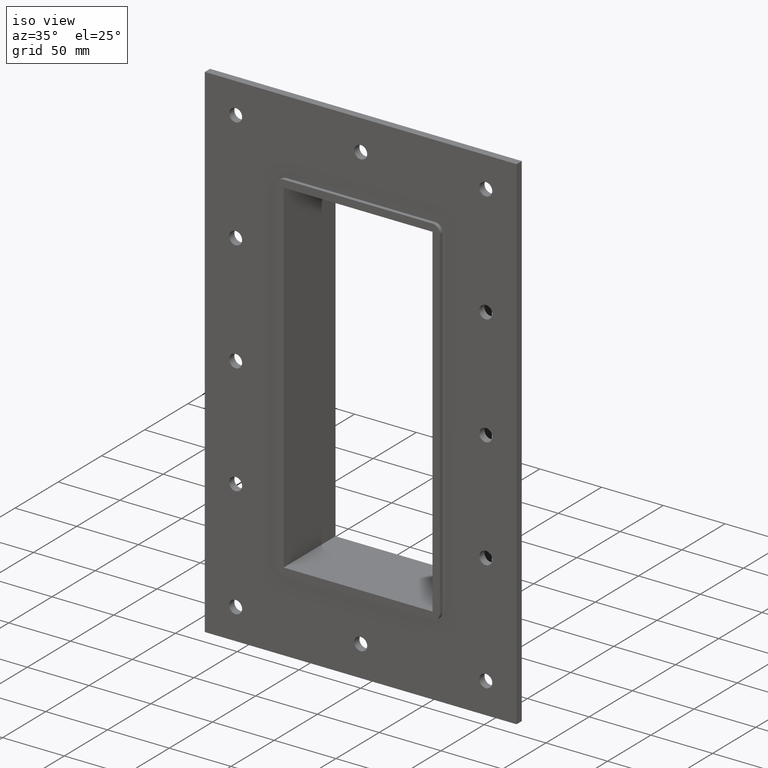
[diagram: clean part render]
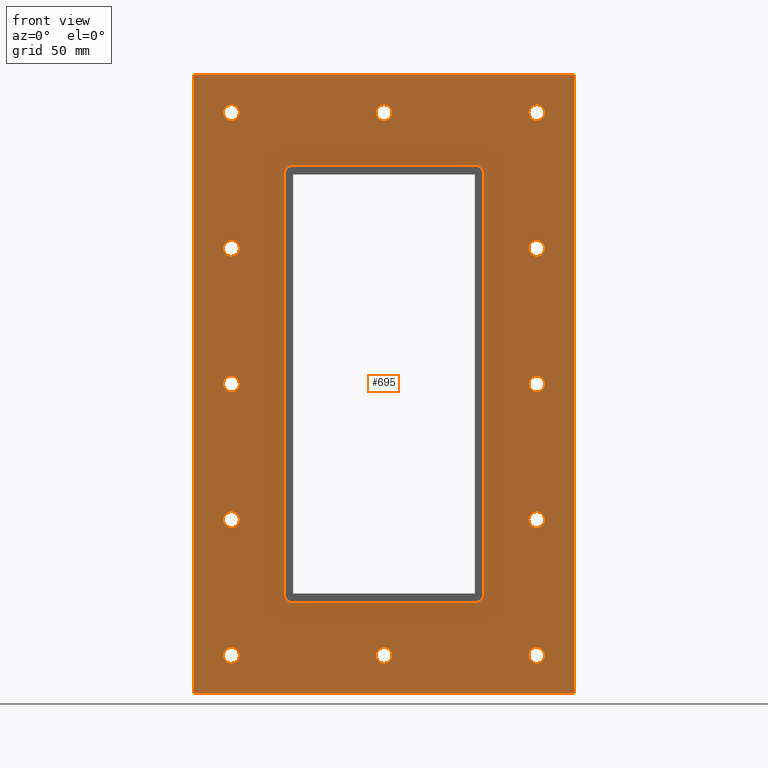
[diagram: tour spotlight — one face highlighted and labeled with its STEP entity id]
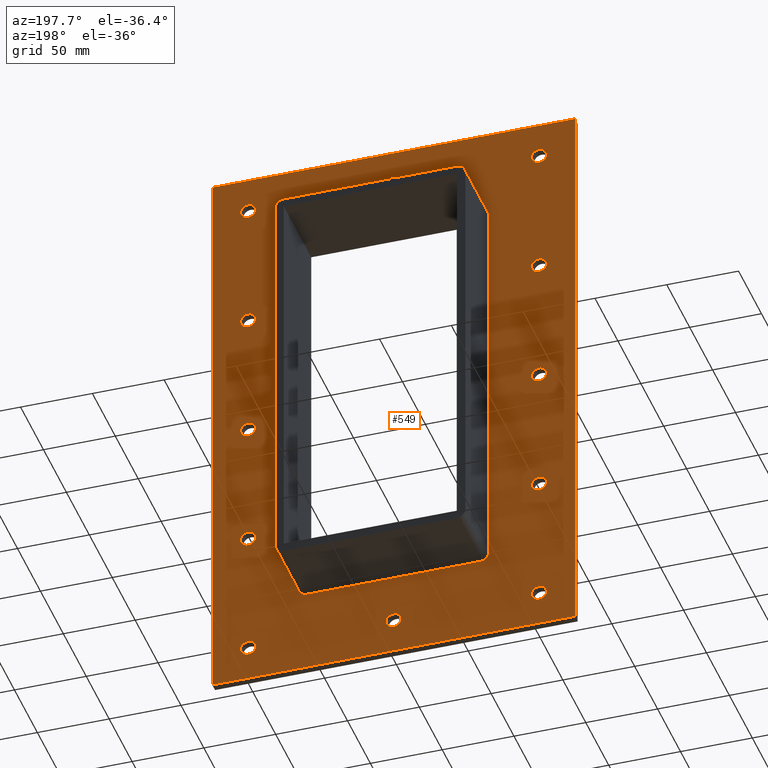
[diagram: tour spotlight — one face highlighted and labeled with its STEP entity id]
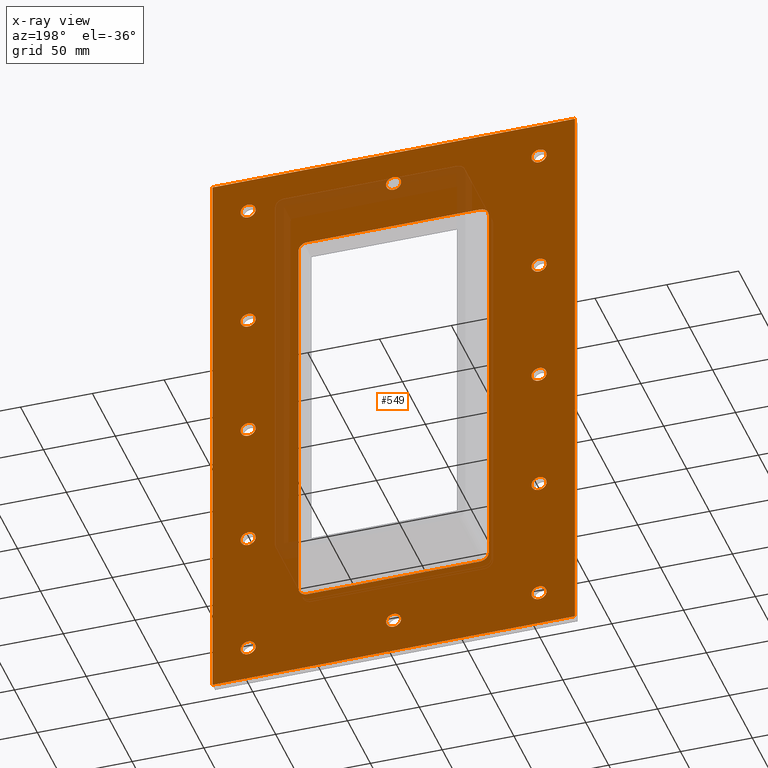
[diagram: x-ray of the same camera — body ghosted, this tour face saturated]
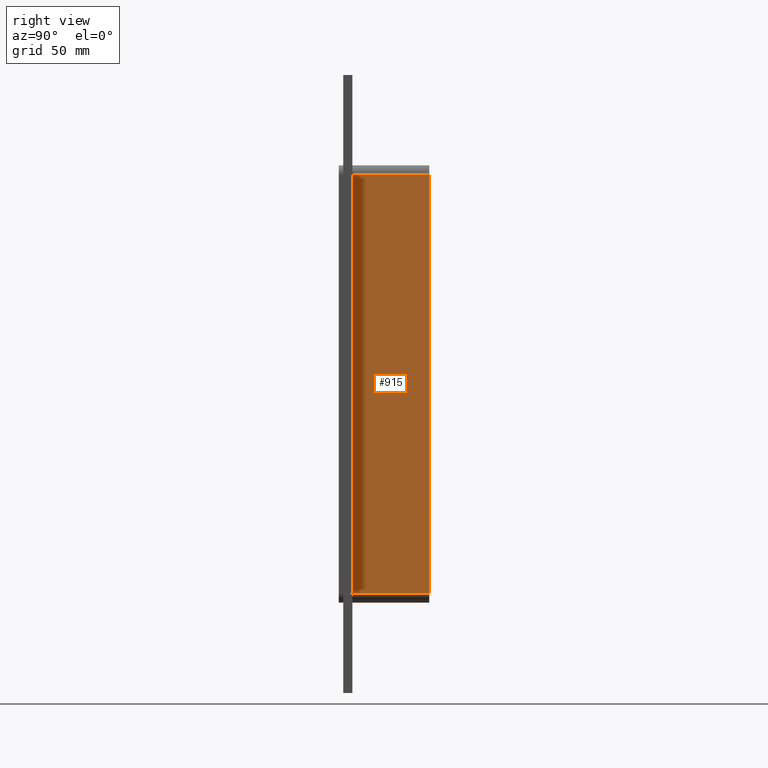
[diagram: tour spotlight — one face highlighted and labeled with its STEP entity id]
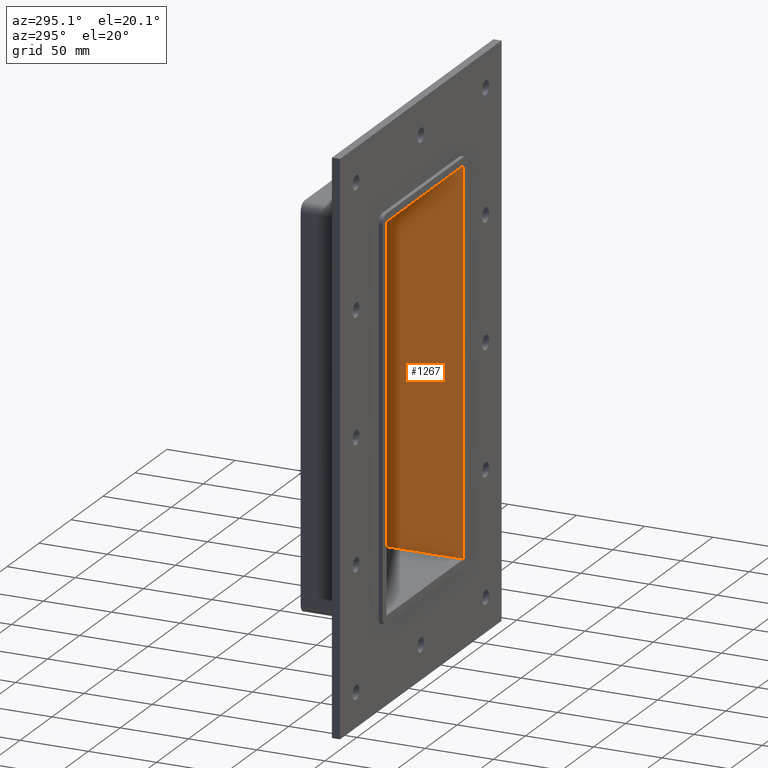
[diagram: tour spotlight — one face highlighted and labeled with its STEP entity id]
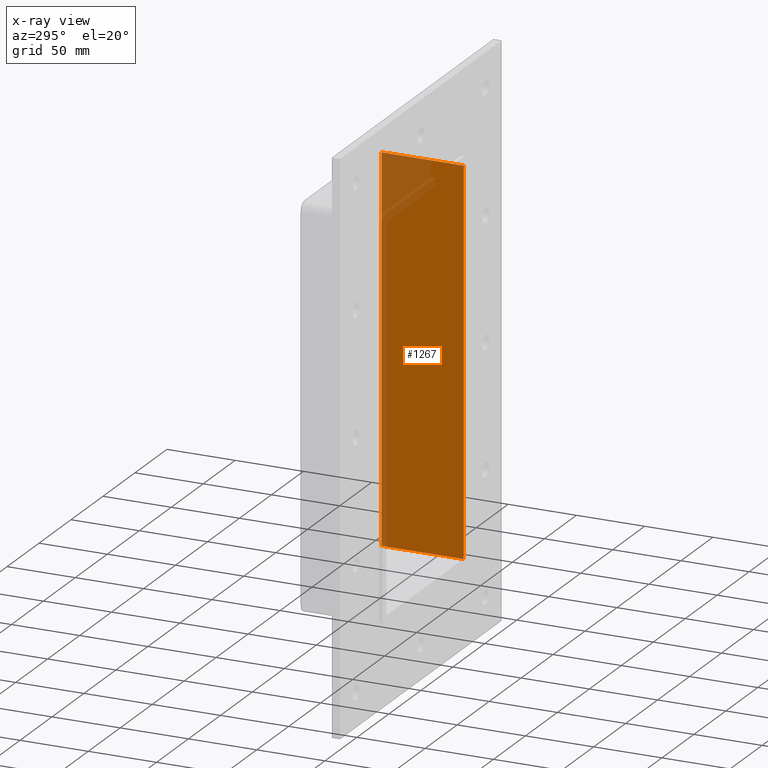
[diagram: x-ray of the same camera — body ghosted, this tour face saturated]
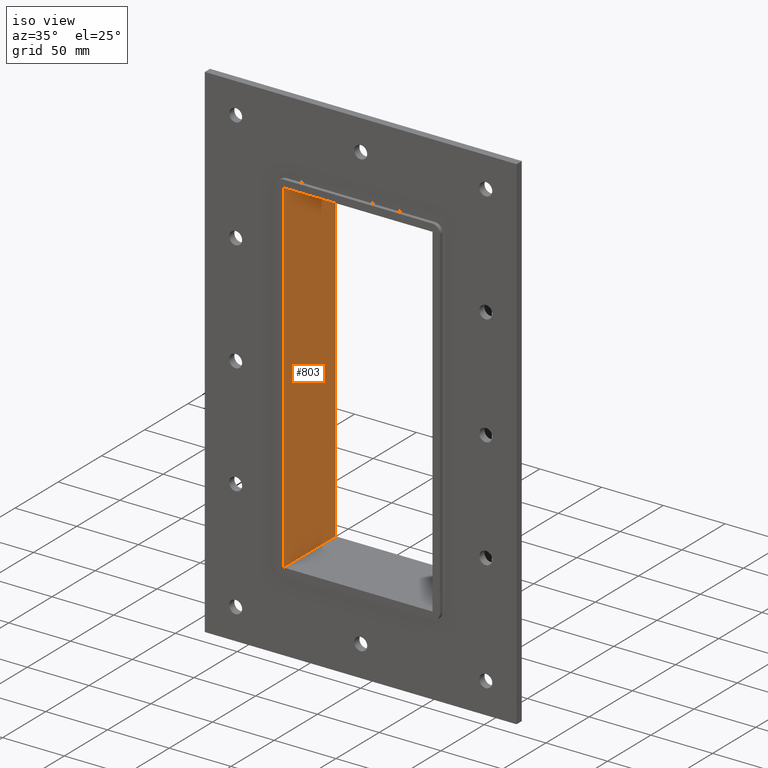
[diagram: tour spotlight — one face highlighted and labeled with its STEP entity id]
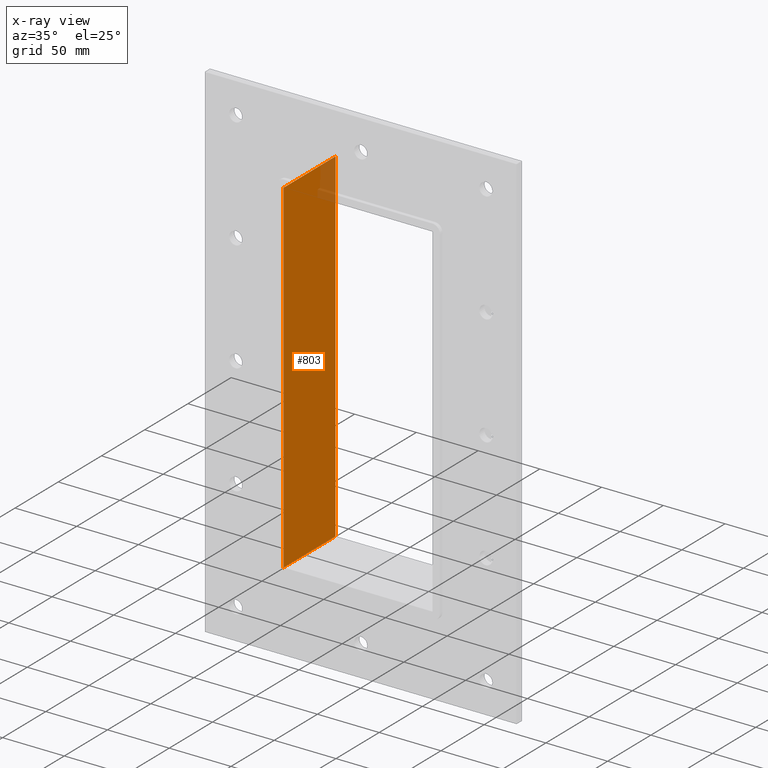
[diagram: x-ray of the same camera — body ghosted, this tour face saturated]
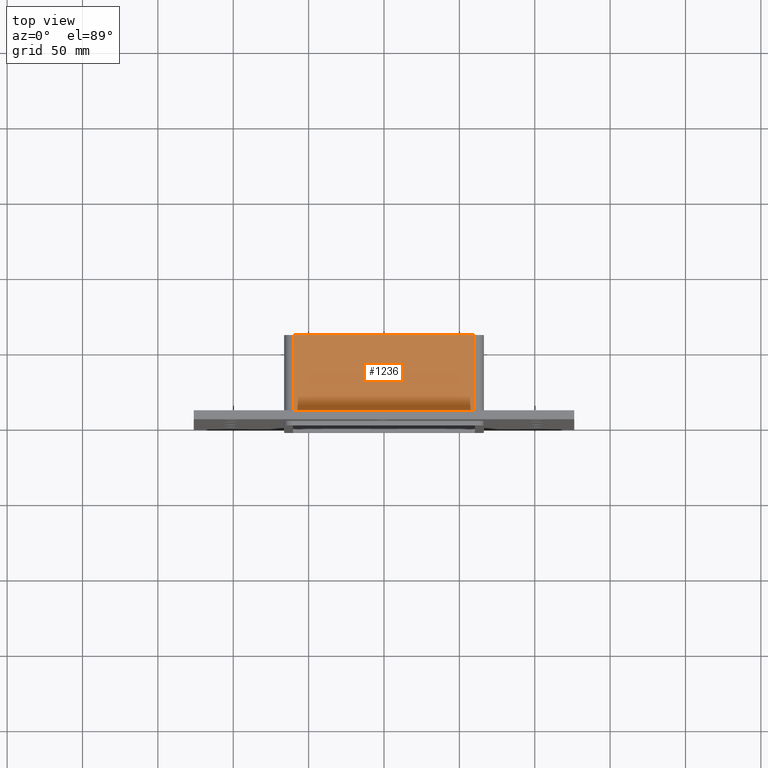
[diagram: tour spotlight — one face highlighted and labeled with its STEP entity id]
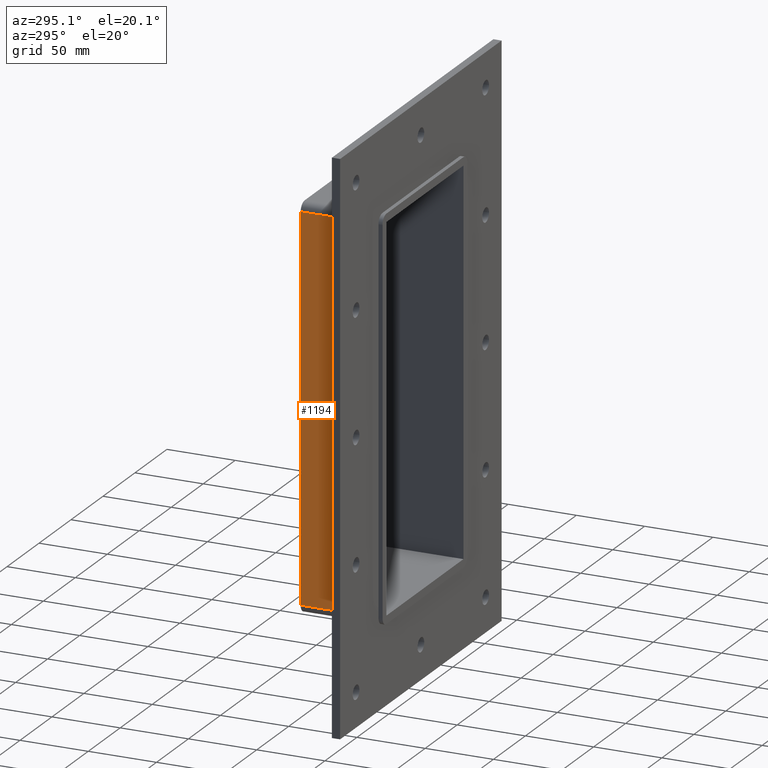
[diagram: tour spotlight — one face highlighted and labeled with its STEP entity id]
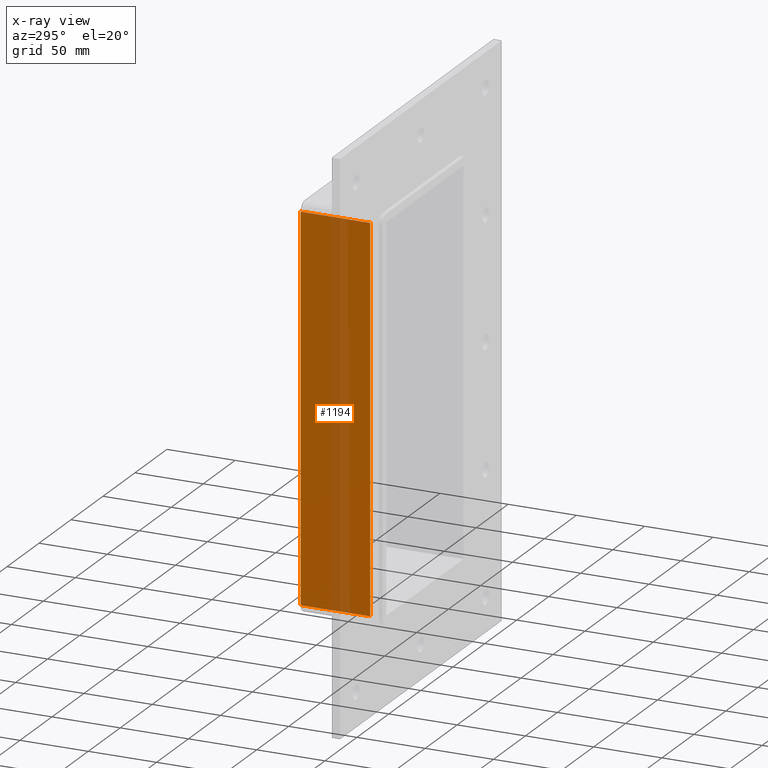
[diagram: x-ray of the same camera — body ghosted, this tour face saturated]
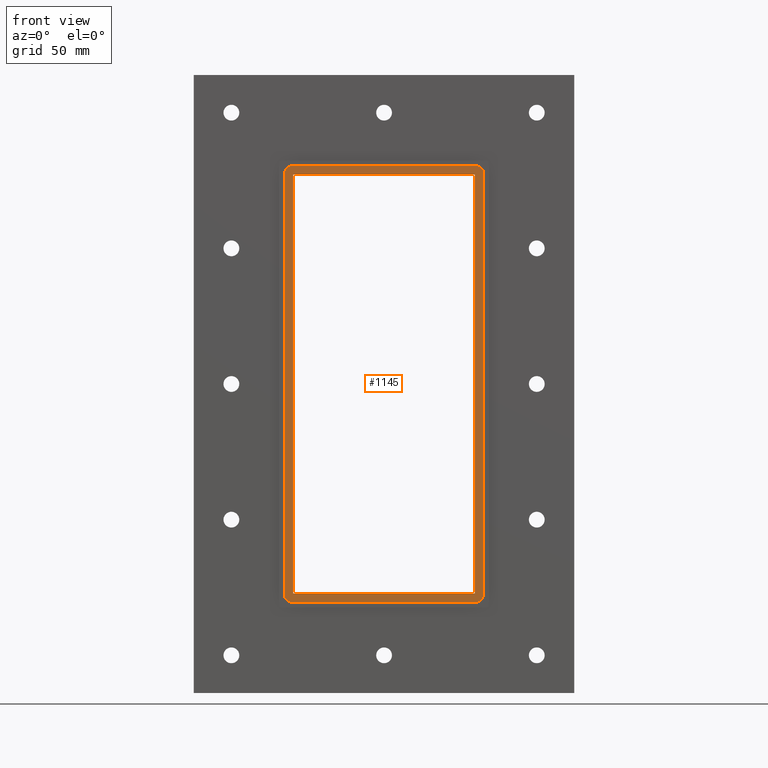
[diagram: tour spotlight — one face highlighted and labeled with its STEP entity id]
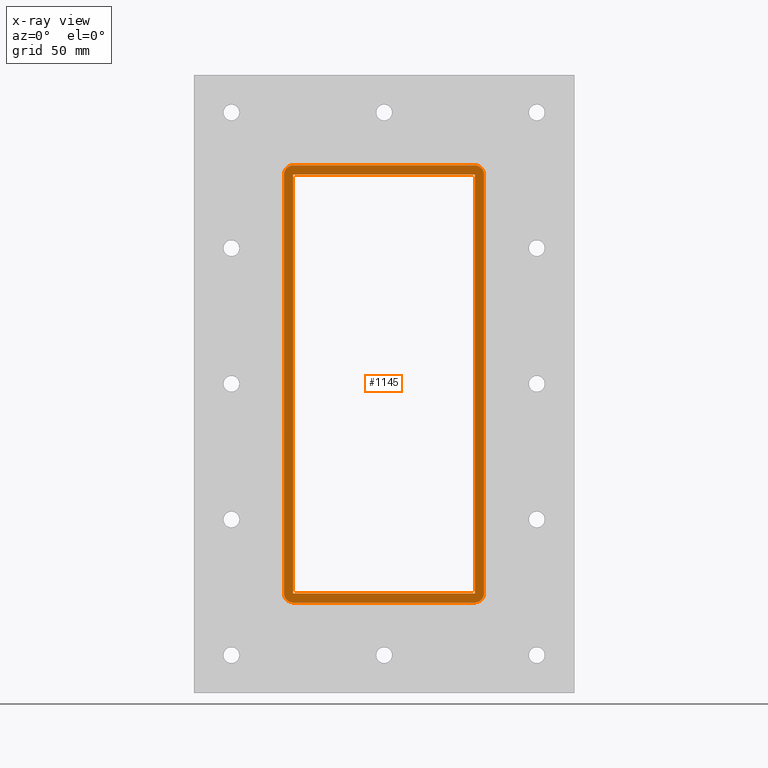
[diagram: x-ray of the same camera — body ghosted, this tour face saturated]
A machine part: a face-by-face anatomy tour. The part has 40 B-rep faces; the first image is the clean iso view, then the 8 largest visible faces are spotlighted one at a time (largest first), each with its STEP entity span.

Face 1 — front view, entity #695. In plain terms, the highlighted planar face has unit normal (0, 1, 0).
Definition (entity closure, byte-faithful):
#84=CARTESIAN_POINT('',(-96.0,0.0,-180.0));
#85=VERTEX_POINT('',#84);
#86=CARTESIAN_POINT('',(-101.25,0.0,-180.0));
#87=DIRECTION('',(0.0,1.0,0.0));
#88=DIRECTION('',(1.0,0.0,0.0));
#89=AXIS2_PLACEMENT_3D('',#86,#87,#88);
#90=CIRCLE('',#89,5.25);
#91=EDGE_CURVE('',#85,#85,#90,.T.);
#112=CARTESIAN_POINT('',(106.60000000000002,0.0,-90.0));
#113=VERTEX_POINT('',#112);
#114=CARTESIAN_POINT('',(101.35000000000002,0.0,-90.0));
#115=DIRECTION('',(0.0,1.0,0.0));
#116=DIRECTION('',(1.0,0.0,0.0));
#117=AXIS2_PLACEMENT_3D('',#114,#115,#116);
#118=CIRCLE('',#117,5.25);
#119=EDGE_CURVE('',#113,#113,#118,.T.);
#140=CARTESIAN_POINT('',(-96.0,0.0,-90.0));
#141=VERTEX_POINT('',#140);
#142=CARTESIAN_POINT('',(-101.25,0.0,-90.0));
#143=DIRECTION('',(0.0,1.0,0.0));
#144=DIRECTION('',(1.0,0.0,0.0));
#145=AXIS2_PLACEMENT_3D('',#142,#143,#144);
#146=CIRCLE('',#145,5.25);
#147=EDGE_CURVE('',#141,#141,#146,.T.);
#168=CARTESIAN_POINT('',(106.60000000000002,0.0,0.0));
#169=VERTEX_POINT('',#168);
#170=CARTESIAN_POINT('',(101.35000000000002,0.0,0.0));
#171=DIRECTION('',(0.0,1.0,0.0));
#172=DIRECTION('',(1.0,0.0,0.0));
#173=AXIS2_PLACEMENT_3D('',#170,#171,#172);
#174=CIRCLE('',#173,5.25);
#175=EDGE_CURVE('',#169,#169,#174,.T.);
#196=CARTESIAN_POINT('',(-96.0,0.0,0.0));
#197=VERTEX_POINT('',#196);
#198=CARTESIAN_POINT('',(-101.25,0.0,0.0));
#199=DIRECTION('',(0.0,1.0,0.0));
#200=DIRECTION('',(1.0,0.0,0.0));
#201=AXIS2_PLACEMENT_3D('',#198,#199,#200);
#202=CIRCLE('',#201,5.25);
#203=EDGE_CURVE('',#197,#197,#202,.T.);
#224=CARTESIAN_POINT('',(106.60000000000002,0.0,90.0));
#225=VERTEX_POINT('',#224);
#226=CARTESIAN_POINT('',(101.35000000000002,0.0,90.0));
#227=DIRECTION('',(0.0,1.0,0.0));
#228=DIRECTION('',(1.0,0.0,0.0));
#229=AXIS2_PLACEMENT_3D('',#226,#227,#228);
#230=CIRCLE('',#229,5.25);
#231=EDGE_CURVE('',#225,#225,#230,.T.);
#252=CARTESIAN_POINT('',(-96.0,0.0,90.0));
#253=VERTEX_POINT('',#252);
#254=CARTESIAN_POINT('',(-101.25,0.0,90.0));
#255=DIRECTION('',(0.0,1.0,0.0));
#256=DIRECTION('',(1.0,0.0,0.0));
#257=AXIS2_PLACEMENT_3D('',#254,#255,#256);
#258=CIRCLE('',#257,5.25);
#259=EDGE_CURVE('',#253,#253,#258,.T.);
#280=CARTESIAN_POINT('',(5.300000000000011,0.0,180.0));
#281=VERTEX_POINT('',#280);
#282=CARTESIAN_POINT('',(0.050000000000008,0.0,180.0));
#283=DIRECTION('',(0.0,1.0,0.0));
#284=DIRECTION('',(1.0,0.0,0.0));
#285=AXIS2_PLACEMENT_3D('',#282,#283,#284);
#286=CIRCLE('',#285,5.25);
#287=EDGE_CURVE('',#281,#281,#286,.T.);
#308=CARTESIAN_POINT('',(5.300000000000011,0.0,-180.0));
#309=VERTEX_POINT('',#308);
#310=CARTESIAN_POINT('',(0.050000000000008,0.0,-180.0));
#311=DIRECTION('',(0.0,1.0,0.0));
#312=DIRECTION('',(1.0,0.0,0.0));
#313=AXIS2_PLACEMENT_3D('',#310,#311,#312);
#314=CIRCLE('',#313,5.25);
#315=EDGE_CURVE('',#309,#309,#314,.T.);
#336=CARTESIAN_POINT('',(106.60000000000002,0.0,-180.0));
#337=VERTEX_POINT('',#336);
#338=CARTESIAN_POINT('',(101.35000000000002,0.0,-180.0));
#339=DIRECTION('',(0.0,1.0,0.0));
#340=DIRECTION('',(1.0,0.0,0.0));
#341=AXIS2_PLACEMENT_3D('',#338,#339,#340);
#342=CIRCLE('',#341,5.25);
#343=EDGE_CURVE('',#337,#337,#342,.T.);
#364=CARTESIAN_POINT('',(-96.0,0.0,180.0));
#365=VERTEX_POINT('',#364);
#366=CARTESIAN_POINT('',(-101.25,0.0,180.0));
#367=DIRECTION('',(0.0,1.0,0.0));
#368=DIRECTION('',(1.0,0.0,0.0));
#369=AXIS2_PLACEMENT_3D('',#366,#367,#368);
#370=CIRCLE('',#369,5.25);
#371=EDGE_CURVE('',#365,#365,#370,.T.);
#392=CARTESIAN_POINT('',(106.60000000000002,0.0,180.0));
#393=VERTEX_POINT('',#392);
#394=CARTESIAN_POINT('',(101.35000000000002,0.0,180.0));
#395=DIRECTION('',(0.0,1.0,0.0));
#396=DIRECTION('',(1.0,0.0,0.0));
#397=AXIS2_PLACEMENT_3D('',#394,#395,#396);
#398=CIRCLE('',#397,5.25);
#399=EDGE_CURVE('',#393,#393,#398,.T.);
#550=CARTESIAN_POINT('',(6.435104E-015,0.0,0.0));
#551=DIRECTION('',(0.0,1.0,0.0));
#552=DIRECTION('',(0.0,0.0,1.0));
#553=AXIS2_PLACEMENT_3D('',#550,#551,#552);
#554=PLANE('',#553);
#555=CARTESIAN_POINT('',(-126.24999999999997,0.0,205.0));
#556=VERTEX_POINT('',#555);
#557=CARTESIAN_POINT('',(126.24999999999999,0.0,205.0));
#558=VERTEX_POINT('',#557);
#559=CARTESIAN_POINT('',(-126.24999999999997,0.0,205.0));
#560=DIRECTION('',(1.0,0.0,0.0));
#561=VECTOR('',#560,252.49999999999994);
#562=LINE('',#559,#561);
#563=EDGE_CURVE('',#556,#558,#562,.T.);
#564=ORIENTED_EDGE('',*,*,#563,.F.);
#565=CARTESIAN_POINT('',(-126.24999999999997,0.0,-205.0));
#566=VERTEX_POINT('',#565);
#567=CARTESIAN_POINT('',(-126.24999999999997,0.0,-205.0));
#568=DIRECTION('',(0.0,0.0,1.0));
#569=VECTOR('',#568,410.0);
#570=LINE('',#567,#569);
#571=EDGE_CURVE('',#566,#556,#570,.T.);
#572=ORIENTED_EDGE('',*,*,#571,.F.);
#573=CARTESIAN_POINT('',(126.24999999999999,0.0,-205.0));
#574=VERTEX_POINT('',#573);
#575=CARTESIAN_POINT('',(126.24999999999999,0.0,-205.0));
#576=DIRECTION('',(-1.0,0.0,0.0));
#577=VECTOR('',#576,252.49999999999994);
#578=LINE('',#575,#577);
#579=EDGE_CURVE('',#574,#566,#578,.T.);
#580=ORIENTED_EDGE('',*,*,#579,.F.);
#581=CARTESIAN_POINT('',(126.24999999999999,0.0,205.0));
#582=DIRECTION('',(0.0,0.0,-1.0));
#583=VECTOR('',#582,410.0);
#584=LINE('',#581,#583);
#585=EDGE_CURVE('',#558,#574,#584,.T.);
#586=ORIENTED_EDGE('',*,*,#585,.F.);
#587=EDGE_LOOP('',(#564,#572,#580,#586));
#588=FACE_OUTER_BOUND('',#587,.T.);
#589=ORIENTED_EDGE('',*,*,#91,.T.);
#590=EDGE_LOOP('',(#589));
#591=FACE_BOUND('',#590,.T.);
#592=ORIENTED_EDGE('',*,*,#119,.T.);
#593=EDGE_LOOP('',(#592));
#594=FACE_BOUND('',#593,.T.);
#595=ORIENTED_EDGE('',*,*,#147,.T.);
#596=EDGE_LOOP('',(#595));
#597=FACE_BOUND('',#596,.T.);
#598=ORIENTED_EDGE('',*,*,#175,.T.);
#599=EDGE_LOOP('',(#598));
#600=FACE_BOUND('',#599,.T.);
#601=ORIENTED_EDGE('',*,*,#203,.T.);
#602=EDGE_LOOP('',(#601));
#603=FACE_BOUND('',#602,.T.);
#604=ORIENTED_EDGE('',*,*,#231,.T.);
#605=EDGE_LOOP('',(#604));
#606=FACE_BOUND('',#605,.T.);
#607=ORIENTED_EDGE('',*,*,#259,.T.);
#608=EDGE_LOOP('',(#607));
#609=FACE_BOUND('',#608,.T.);
#610=ORIENTED_EDGE('',*,*,#287,.T.);
#611=EDGE_LOOP('',(#610));
#612=FACE_BOUND('',#611,.T.);
#613=ORIENTED_EDGE('',*,*,#315,.T.);
#614=EDGE_LOOP('',(#613));
#615=FACE_BOUND('',#614,.T.);
#616=ORIENTED_EDGE('',*,*,#343,.T.);
#617=EDGE_LOOP('',(#616));
#618=FACE_BOUND('',#617,.T.);
#619=ORIENTED_EDGE('',*,*,#371,.T.);
#620=EDGE_LOOP('',(#619));
#621=FACE_BOUND('',#620,.T.);
#622=ORIENTED_EDGE('',*,*,#399,.T.);
#623=EDGE_LOOP('',(#622));
#624=FACE_BOUND('',#623,.T.);
#625=CARTESIAN_POINT('',(-66.25,0.0,-139.0));
#626=VERTEX_POINT('',#625);
#627=CARTESIAN_POINT('',(-60.25,0.0,-145.0));
#628=VERTEX_POINT('',#627);
#629=CARTESIAN_POINT('',(-60.25,0.0,-139.0));
#630=DIRECTION('',(0.0,-1.0,0.0));
#631=DIRECTION('',(-0.707106781186546,0.0,-0.707106781186549));
#632=AXIS2_PLACEMENT_3D('',#629,#630,#631);
#633=CIRCLE('',#632,6.000000000000001);
#634=EDGE_CURVE('',#626,#628,#633,.T.);
#635=ORIENTED_EDGE('',*,*,#634,.F.);
#636=CARTESIAN_POINT('',(-66.25,0.0,139.0));
#637=VERTEX_POINT('',#636);
#638=CARTESIAN_POINT('',(-66.25,0.0,139.0));
#639=DIRECTION('',(0.0,0.0,-1.0));
#640=VECTOR('',#639,278.0);
#641=LINE('',#638,#640);
#642=EDGE_CURVE('',#637,#626,#641,.T.);
#643=ORIENTED_EDGE('',*,*,#642,.F.);
#644=CARTESIAN_POINT('',(-60.25,0.0,145.0));
#645=VERTEX_POINT('',#644);
#646=CARTESIAN_POINT('',(-60.25,0.0,139.0));
#647=DIRECTION('',(0.0,-1.0,0.0));
#648=DIRECTION('',(-0.707106781186546,0.0,0.707106781186549));
#649=AXIS2_PLACEMENT_3D('',#646,#647,#648);
#650=CIRCLE('',#649,6.000000000000001);
#651=EDGE_CURVE('',#645,#637,#650,.T.);
#652=ORIENTED_EDGE('',*,*,#651,.F.);
#653=CARTESIAN_POINT('',(60.25,0.0,145.0));
#654=VERTEX_POINT('',#653);
#655=CARTESIAN_POINT('',(60.250000000000007,0.0,145.0));
#656=DIRECTION('',(-1.0,0.0,0.0));
#657=VECTOR('',#656,120.5);
#658=LINE('',#655,#657);
#659=EDGE_CURVE('',#654,#645,#658,.T.);
#660=ORIENTED_EDGE('',*,*,#659,.F.);
#661=CARTESIAN_POINT('',(66.25,0.0,139.0));
#662=VERTEX_POINT('',#661);
#663=CARTESIAN_POINT('',(60.25,0.0,139.0));
#664=DIRECTION('',(0.0,-1.0,0.0));
#665=DIRECTION('',(0.707106781186548,0.0,0.707106781186547));
#666=AXIS2_PLACEMENT_3D('',#663,#664,#665);
#667=CIRCLE('',#666,6.0);
#668=EDGE_CURVE('',#662,#654,#667,.T.);
#669=ORIENTED_EDGE('',*,*,#668,.F.);
#670=CARTESIAN_POINT('',(66.25,0.0,-139.0));
#671=VERTEX_POINT('',#670);
#672=CARTESIAN_POINT('',(66.25,0.0,-139.0));
#673=DIRECTION('',(0.0,0.0,1.0));
#674=VECTOR('',#673,278.0);
#675=LINE('',#672,#674);
#676=EDGE_CURVE('',#671,#662,#675,.T.);
#677=ORIENTED_EDGE('',*,*,#676,.F.);
#678=CARTESIAN_POINT('',(60.25,0.0,-145.0));
#679=VERTEX_POINT('',#678);
#680=CARTESIAN_POINT('',(60.25,0.0,-139.0));
#681=DIRECTION('',(0.0,-1.0,0.0));
#682=DIRECTION('',(0.707106781186546,0.0,-0.707106781186549));
#683=AXIS2_PLACEMENT_3D('',#680,#681,#682);
#684=CIRCLE('',#683,6.000000000000001);
#685=EDGE_CURVE('',#679,#671,#684,.T.);
#686=ORIENTED_EDGE('',*,*,#685,.F.);
#687=CARTESIAN_POINT('',(-60.249999999999993,0.0,-145.0));
#688=DIRECTION('',(1.0,0.0,0.0));
#689=VECTOR('',#688,120.5);
#690=LINE('',#687,#689);
#691=EDGE_CURVE('',#628,#679,#690,.T.);
#692=ORIENTED_EDGE('',*,*,#691,.F.);
#693=EDGE_LOOP('',(#635,#643,#652,#660,#669,#677,#686,#692));
#694=FACE_BOUND('',#693,.T.);
#695=ADVANCED_FACE('',(#588,#591,#594,#597,#600,#603,#606,#609,#612,#615,#618,#621,#624,#694),#554,.F.);

Face 2 — auxiliary view, entity #549. An x-ray twin of the same camera follows (body ghosted, this face saturated) — the face is partly hidden behind the body. In plain terms, the highlighted planar face has unit normal (0, 1, 0).
Definition (entity closure, byte-faithful):
#73=CARTESIAN_POINT('',(-106.5,6.000000000000014,-180.0));
#74=VERTEX_POINT('',#73);
#75=CARTESIAN_POINT('',(-101.25,6.000000000000014,-180.0));
#76=DIRECTION('',(0.0,-1.0,0.0));
#77=DIRECTION('',(1.0,0.0,0.0));
#78=AXIS2_PLACEMENT_3D('',#75,#76,#77);
#79=CIRCLE('',#78,5.25);
#80=EDGE_CURVE('',#74,#74,#79,.T.);
#101=CARTESIAN_POINT('',(96.100000000000009,6.000000000000014,-90.0));
#102=VERTEX_POINT('',#101);
#103=CARTESIAN_POINT('',(101.35000000000002,6.000000000000014,-90.0));
#104=DIRECTION('',(0.0,-1.0,0.0));
#105=DIRECTION('',(1.0,0.0,0.0));
#106=AXIS2_PLACEMENT_3D('',#103,#104,#105);
#107=CIRCLE('',#106,5.25);
#108=EDGE_CURVE('',#102,#102,#107,.T.);
#129=CARTESIAN_POINT('',(-106.5,6.000000000000014,-90.0));
#130=VERTEX_POINT('',#129);
#131=CARTESIAN_POINT('',(-101.25,6.000000000000014,-90.0));
#132=DIRECTION('',(0.0,-1.0,0.0));
#133=DIRECTION('',(1.0,0.0,0.0));
#134=AXIS2_PLACEMENT_3D('',#131,#132,#133);
#135=CIRCLE('',#134,5.25);
#136=EDGE_CURVE('',#130,#130,#135,.T.);
#157=CARTESIAN_POINT('',(96.100000000000009,6.000000000000014,0.0));
#158=VERTEX_POINT('',#157);
#159=CARTESIAN_POINT('',(101.35000000000002,6.000000000000014,0.0));
#160=DIRECTION('',(0.0,-1.0,0.0));
#161=DIRECTION('',(1.0,0.0,0.0));
#162=AXIS2_PLACEMENT_3D('',#159,#160,#161);
#163=CIRCLE('',#162,5.25);
#164=EDGE_CURVE('',#158,#158,#163,.T.);
#185=CARTESIAN_POINT('',(-106.5,6.000000000000014,0.0));
#186=VERTEX_POINT('',#185);
#187=CARTESIAN_POINT('',(-101.25,6.000000000000014,0.0));
#188=DIRECTION('',(0.0,-1.0,0.0));
#189=DIRECTION('',(1.0,0.0,0.0));
#190=AXIS2_PLACEMENT_3D('',#187,#188,#189);
#191=CIRCLE('',#190,5.25);
#192=EDGE_CURVE('',#186,#186,#191,.T.);
#213=CARTESIAN_POINT('',(96.100000000000009,6.000000000000014,90.0));
#214=VERTEX_POINT('',#213);
#215=CARTESIAN_POINT('',(101.35000000000002,6.000000000000014,90.0));
#216=DIRECTION('',(0.0,-1.0,0.0));
#217=DIRECTION('',(1.0,0.0,0.0));
#218=AXIS2_PLACEMENT_3D('',#215,#216,#217);
#219=CIRCLE('',#218,5.25);
#220=EDGE_CURVE('',#214,#214,#219,.T.);
#241=CARTESIAN_POINT('',(-106.5,6.000000000000014,90.0));
#242=VERTEX_POINT('',#241);
#243=CARTESIAN_POINT('',(-101.25,6.000000000000014,90.0));
#244=DIRECTION('',(0.0,-1.0,0.0));
#245=DIRECTION('',(1.0,0.0,0.0));
#246=AXIS2_PLACEMENT_3D('',#243,#244,#245);
#247=CIRCLE('',#246,5.25);
#248=EDGE_CURVE('',#242,#242,#247,.T.);
#269=CARTESIAN_POINT('',(-5.199999999999996,6.000000000000014,180.0));
#270=VERTEX_POINT('',#269);
#271=CARTESIAN_POINT('',(0.050000000000008,6.000000000000014,180.0));
#272=DIRECTION('',(0.0,-1.0,0.0));
#273=DIRECTION('',(1.0,0.0,0.0));
#274=AXIS2_PLACEMENT_3D('',#271,#272,#273);
#275=CIRCLE('',#274,5.25);
#276=EDGE_CURVE('',#270,#270,#275,.T.);
#297=CARTESIAN_POINT('',(-5.199999999999996,6.000000000000014,-180.0));
#298=VERTEX_POINT('',#297);
#299=CARTESIAN_POINT('',(0.050000000000008,6.000000000000014,-180.0));
#300=DIRECTION('',(0.0,-1.0,0.0));
#301=DIRECTION('',(1.0,0.0,0.0));
#302=AXIS2_PLACEMENT_3D('',#299,#300,#301);
#303=CIRCLE('',#302,5.25);
#304=EDGE_CURVE('',#298,#298,#303,.T.);
#325=CARTESIAN_POINT('',(96.100000000000009,6.000000000000014,-180.0));
#326=VERTEX_POINT('',#325);
#327=CARTESIAN_POINT('',(101.35000000000002,6.000000000000014,-180.0));
#328=DIRECTION('',(0.0,-1.0,0.0));
#329=DIRECTION('',(1.0,0.0,0.0));
#330=AXIS2_PLACEMENT_3D('',#327,#328,#329);
#331=CIRCLE('',#330,5.25);
#332=EDGE_CURVE('',#326,#326,#331,.T.);
#353=CARTESIAN_POINT('',(-106.5,6.000000000000014,180.0));
#354=VERTEX_POINT('',#353);
#355=CARTESIAN_POINT('',(-101.25,6.000000000000014,180.0));
#356=DIRECTION('',(0.0,-1.0,0.0));
#357=DIRECTION('',(1.0,0.0,0.0));
#358=AXIS2_PLACEMENT_3D('',#355,#356,#357);
#359=CIRCLE('',#358,5.25);
#360=EDGE_CURVE('',#354,#354,#359,.T.);
#381=CARTESIAN_POINT('',(96.100000000000009,6.000000000000014,180.0));
#382=VERTEX_POINT('',#381);
#383=CARTESIAN_POINT('',(101.35000000000002,6.000000000000014,180.0));
#384=DIRECTION('',(0.0,-1.0,0.0));
#385=DIRECTION('',(1.0,0.0,0.0));
#386=AXIS2_PLACEMENT_3D('',#383,#384,#385);
#387=CIRCLE('',#386,5.25);
#388=EDGE_CURVE('',#382,#382,#387,.T.);
#404=CARTESIAN_POINT('',(6.435104E-015,6.000000000000001,0.0));
#405=DIRECTION('',(0.0,1.0,0.0));
#406=DIRECTION('',(0.0,0.0,1.0));
#407=AXIS2_PLACEMENT_3D('',#404,#405,#406);
#408=PLANE('',#407);
#409=CARTESIAN_POINT('',(-126.24999999999997,6.000000000000001,205.0));
#410=VERTEX_POINT('',#409);
#411=CARTESIAN_POINT('',(126.24999999999997,6.000000000000001,205.0));
#412=VERTEX_POINT('',#411);
#413=CARTESIAN_POINT('',(-126.24999999999997,6.000000000000001,205.0));
#414=DIRECTION('',(1.0,0.0,0.0));
#415=VECTOR('',#414,252.49999999999994);
#416=LINE('',#413,#415);
#417=EDGE_CURVE('',#410,#412,#416,.T.);
#418=ORIENTED_EDGE('',*,*,#417,.T.);
#419=CARTESIAN_POINT('',(126.24999999999997,6.000000000000001,-205.0));
#420=VERTEX_POINT('',#419);
#421=CARTESIAN_POINT('',(126.24999999999999,6.000000000000001,205.0));
#422=DIRECTION('',(0.0,0.0,-1.0));
#423=VECTOR('',#422,410.0);
#424=LINE('',#421,#423);
#425=EDGE_CURVE('',#412,#420,#424,.T.);
#426=ORIENTED_EDGE('',*,*,#425,.T.);
#427=CARTESIAN_POINT('',(-126.24999999999997,6.000000000000001,-205.0));
#428=VERTEX_POINT('',#427);
#429=CARTESIAN_POINT('',(126.24999999999999,6.000000000000001,-205.0));
#430=DIRECTION('',(-1.0,0.0,0.0));
#431=VECTOR('',#430,252.49999999999994);
#432=LINE('',#429,#431);
#433=EDGE_CURVE('',#420,#428,#432,.T.);
#434=ORIENTED_EDGE('',*,*,#433,.T.);
#435=CARTESIAN_POINT('',(-126.24999999999997,6.000000000000001,-205.0));
#436=DIRECTION('',(0.0,0.0,1.0));
#437=VECTOR('',#436,410.0);
#438=LINE('',#435,#437);
#439=EDGE_CURVE('',#428,#410,#438,.T.);
#440=ORIENTED_EDGE('',*,*,#439,.T.);
#441=EDGE_LOOP('',(#418,#426,#434,#440));
#442=FACE_OUTER_BOUND('',#441,.T.);
#443=ORIENTED_EDGE('',*,*,#80,.T.);
#444=EDGE_LOOP('',(#443));
#445=FACE_BOUND('',#444,.T.);
#446=ORIENTED_EDGE('',*,*,#108,.T.);
#447=EDGE_LOOP('',(#446));
#448=FACE_BOUND('',#447,.T.);
#449=ORIENTED_EDGE('',*,*,#136,.T.);
#450=EDGE_LOOP('',(#449));
#451=FACE_BOUND('',#450,.T.);
#452=ORIENTED_EDGE('',*,*,#164,.T.);
#453=EDGE_LOOP('',(#452));
#454=FACE_BOUND('',#453,.T.);
#455=ORIENTED_EDGE('',*,*,#192,.T.);
#456=EDGE_LOOP('',(#455));
#457=FACE_BOUND('',#456,.T.);
#458=ORIENTED_EDGE('',*,*,#220,.T.);
#459=EDGE_LOOP('',(#458));
#460=FACE_BOUND('',#459,.T.);
#461=ORIENTED_EDGE('',*,*,#248,.T.);
#462=EDGE_LOOP('',(#461));
#463=FACE_BOUND('',#462,.T.);
#464=ORIENTED_EDGE('',*,*,#276,.T.);
#465=EDGE_LOOP('',(#464));
#466=FACE_BOUND('',#465,.T.);
#467=ORIENTED_EDGE('',*,*,#304,.T.);
#468=EDGE_LOOP('',(#467));
#469=FACE_BOUND('',#468,.T.);
#470=ORIENTED_EDGE('',*,*,#332,.T.);
#471=EDGE_LOOP('',(#470));
#472=FACE_BOUND('',#471,.T.);
#473=ORIENTED_EDGE('',*,*,#360,.T.);
#474=EDGE_LOOP('',(#473));
#475=FACE_BOUND('',#474,.T.);
#476=ORIENTED_EDGE('',*,*,#388,.T.);
#477=EDGE_LOOP('',(#476));
#478=FACE_BOUND('',#477,.T.);
#479=CARTESIAN_POINT('',(-60.25,6.000000000000001,-145.0));
#480=VERTEX_POINT('',#479);
#481=CARTESIAN_POINT('',(-66.25,6.000000000000001,-139.0));
#482=VERTEX_POINT('',#481);
#483=CARTESIAN_POINT('',(-60.25,6.000000000000001,-139.0));
#484=DIRECTION('',(0.0,1.0,0.0));
#485=DIRECTION('',(-0.707106781186546,0.0,-0.707106781186549));
#486=AXIS2_PLACEMENT_3D('',#483,#484,#485);
#487=CIRCLE('',#486,6.000000000000001);
#488=EDGE_CURVE('',#480,#482,#487,.T.);
#489=ORIENTED_EDGE('',*,*,#488,.F.);
#490=CARTESIAN_POINT('',(60.25,6.000000000000001,-145.0));
#491=VERTEX_POINT('',#490);
#492=CARTESIAN_POINT('',(60.250000000000007,6.000000000000001,-145.0));
#493=DIRECTION('',(-1.0,0.0,0.0));
#494=VECTOR('',#493,120.5);
#495=LINE('',#492,#494);
#496=EDGE_CURVE('',#491,#480,#495,.T.);
#497=ORIENTED_EDGE('',*,*,#496,.F.);
#498=CARTESIAN_POINT('',(66.25,6.000000000000001,-139.0));
#499=VERTEX_POINT('',#498);
#500=CARTESIAN_POINT('',(60.25,6.000000000000001,-139.0));
#501=DIRECTION('',(0.0,1.0,0.0));
#502=DIRECTION('',(0.707106781186546,0.0,-0.707106781186549));
#503=AXIS2_PLACEMENT_3D('',#500,#501,#502);
#504=CIRCLE('',#503,6.000000000000001);
#505=EDGE_CURVE('',#499,#491,#504,.T.);
#506=ORIENTED_EDGE('',*,*,#505,.F.);
#507=CARTESIAN_POINT('',(66.25,6.000000000000001,139.0));
#508=VERTEX_POINT('',#507);
#509=CARTESIAN_POINT('',(66.25,6.000000000000001,139.0));
#510=DIRECTION('',(0.0,0.0,-1.0));
#511=VECTOR('',#510,278.0);
#512=LINE('',#509,#511);
#513=EDGE_CURVE('',#508,#499,#512,.T.);
#514=ORIENTED_EDGE('',*,*,#513,.F.);
#515=CARTESIAN_POINT('',(60.25,6.000000000000001,145.0));
#516=VERTEX_POINT('',#515);
#517=CARTESIAN_POINT('',(60.25,6.000000000000001,139.0));
#518=DIRECTION('',(0.0,1.0,0.0));
#519=DIRECTION('',(0.707106781186548,0.0,0.707106781186547));
#520=AXIS2_PLACEMENT_3D('',#517,#518,#519);
#521=CIRCLE('',#520,6.0);
#522=EDGE_CURVE('',#516,#508,#521,.T.);
#523=ORIENTED_EDGE('',*,*,#522,.F.);
#524=CARTESIAN_POINT('',(-60.25,6.000000000000001,145.0));
#525=VERTEX_POINT('',#524);
#526=CARTESIAN_POINT('',(-60.25,6.000000000000001,145.0));
#527=DIRECTION('',(1.0,0.0,0.0));
#528=VECTOR('',#527,120.5);
#529=LINE('',#526,#528);
#530=EDGE_CURVE('',#525,#516,#529,.T.);
#531=ORIENTED_EDGE('',*,*,#530,.F.);
#532=CARTESIAN_POINT('',(-66.25,6.000000000000001,139.0));
#533=VERTEX_POINT('',#532);
#534=CARTESIAN_POINT('',(-60.25,6.000000000000001,139.0));
#535=DIRECTION('',(0.0,1.0,0.0));
#536=DIRECTION('',(-0.707106781186546,0.0,0.707106781186549));
#537=AXIS2_PLACEMENT_3D('',#534,#535,#536);
#538=CIRCLE('',#537,6.000000000000001);
#539=EDGE_CURVE('',#533,#525,#538,.T.);
#540=ORIENTED_EDGE('',*,*,#539,.F.);
#541=CARTESIAN_POINT('',(-66.25,6.000000000000001,-139.0));
#542=DIRECTION('',(0.0,0.0,1.0));
#543=VECTOR('',#542,278.0);
#544=LINE('',#541,#543);
#545=EDGE_CURVE('',#482,#533,#544,.T.);
#546=ORIENTED_EDGE('',*,*,#545,.F.);
#547=EDGE_LOOP('',(#489,#497,#506,#514,#523,#531,#540,#546));
#548=FACE_BOUND('',#547,.T.);
#549=ADVANCED_FACE('',(#442,#445,#448,#451,#454,#457,#460,#463,#466,#469,#472,#475,#478,#548),#408,.T.);

Face 3 — right view, entity #915. In plain terms, the highlighted planar face has unit normal (1, 0, 0).
Definition (entity closure, byte-faithful):
#498=CARTESIAN_POINT('',(66.25,6.000000000000001,-139.0));
#499=VERTEX_POINT('',#498);
#507=CARTESIAN_POINT('',(66.25,6.000000000000001,139.0));
#508=VERTEX_POINT('',#507);
#509=CARTESIAN_POINT('',(66.25,6.000000000000001,139.0));
#510=DIRECTION('',(0.0,0.0,-1.0));
#511=VECTOR('',#510,278.0);
#512=LINE('',#509,#511);
#513=EDGE_CURVE('',#508,#499,#512,.T.);
#842=CARTESIAN_POINT('',(66.25,57.0,139.0));
#843=VERTEX_POINT('',#842);
#844=CARTESIAN_POINT('',(66.25,6.000000000000001,139.0));
#845=DIRECTION('',(0.0,1.0,0.0));
#846=VECTOR('',#845,51.0);
#847=LINE('',#844,#846);
#848=EDGE_CURVE('',#508,#843,#847,.T.);
#892=CARTESIAN_POINT('',(66.25,0.0,145.0));
#893=DIRECTION('',(1.0,0.0,0.0));
#894=DIRECTION('',(0.0,0.0,-1.0));
#895=AXIS2_PLACEMENT_3D('',#892,#893,#894);
#896=PLANE('',#895);
#897=ORIENTED_EDGE('',*,*,#513,.T.);
#898=CARTESIAN_POINT('',(66.25,57.0,-139.0));
#899=VERTEX_POINT('',#898);
#900=CARTESIAN_POINT('',(66.25,57.0,-139.0));
#901=DIRECTION('',(0.0,-1.0,0.0));
#902=VECTOR('',#901,51.0);
#903=LINE('',#900,#902);
#904=EDGE_CURVE('',#899,#499,#903,.T.);
#905=ORIENTED_EDGE('',*,*,#904,.F.);
#906=CARTESIAN_POINT('',(66.25,57.0,139.0));
#907=DIRECTION('',(0.0,0.0,-1.0));
#908=VECTOR('',#907,278.0);
#909=LINE('',#906,#908);
#910=EDGE_CURVE('',#843,#899,#909,.T.);
#911=ORIENTED_EDGE('',*,*,#910,.F.);
#912=ORIENTED_EDGE('',*,*,#848,.F.);
#913=EDGE_LOOP('',(#897,#905,#911,#912));
#914=FACE_OUTER_BOUND('',#913,.T.);
#915=ADVANCED_FACE('',(#914),#896,.T.);

Face 4 — auxiliary view, entity #1267. An x-ray twin of the same camera follows (body ghosted, this face saturated) — the face is partly hidden behind the body. In plain terms, the highlighted planar face has unit normal (1, 0, 0).
Definition (entity closure, byte-faithful):
#1120=CARTESIAN_POINT('',(60.249999999999986,-3.0,139.0));
#1121=VERTEX_POINT('',#1120);
#1122=CARTESIAN_POINT('',(60.249999999999986,-3.0,-139.0));
#1123=VERTEX_POINT('',#1122);
#1124=CARTESIAN_POINT('',(60.249999999999986,-3.0,139.0));
#1125=DIRECTION('',(0.0,0.0,-1.0));
#1126=VECTOR('',#1125,278.0);
#1127=LINE('',#1124,#1126);
#1128=EDGE_CURVE('',#1121,#1123,#1127,.T.);
#1237=CARTESIAN_POINT('',(60.249999999999986,0.0,139.0));
#1238=DIRECTION('',(1.0,0.0,0.0));
#1239=DIRECTION('',(0.0,0.0,-1.0));
#1240=AXIS2_PLACEMENT_3D('',#1237,#1238,#1239);
#1241=PLANE('',#1240);
#1242=CARTESIAN_POINT('',(60.249999999999986,57.0,-139.0));
#1243=VERTEX_POINT('',#1242);
#1244=CARTESIAN_POINT('',(60.249999999999986,56.999999999999993,-139.0));
#1245=DIRECTION('',(0.0,-1.0,0.0));
#1246=VECTOR('',#1245,59.999999999999993);
#1247=LINE('',#1244,#1246);
#1248=EDGE_CURVE('',#1243,#1123,#1247,.T.);
#1249=ORIENTED_EDGE('',*,*,#1248,.T.);
#1250=ORIENTED_EDGE('',*,*,#1128,.F.);
#1251=CARTESIAN_POINT('',(60.249999999999986,57.0,139.0));
#1252=VERTEX_POINT('',#1251);
#1253=CARTESIAN_POINT('',(60.249999999999986,-3.0,139.0));
#1254=DIRECTION('',(0.0,1.0,0.0));
#1255=VECTOR('',#1254,60.0);
#1256=LINE('',#1253,#1255);
#1257=EDGE_CURVE('',#1121,#1252,#1256,.T.);
#1258=ORIENTED_EDGE('',*,*,#1257,.T.);
#1259=CARTESIAN_POINT('',(60.249999999999986,57.0,-139.0));
#1260=DIRECTION('',(0.0,0.0,1.0));
#1261=VECTOR('',#1260,278.0);
#1262=LINE('',#1259,#1261);
#1263=EDGE_CURVE('',#1243,#1252,#1262,.T.);
#1264=ORIENTED_EDGE('',*,*,#1263,.F.);
#1265=EDGE_LOOP('',(#1249,#1250,#1258,#1264));
#1266=FACE_OUTER_BOUND('',#1265,.T.);
#1267=ADVANCED_FACE('',(#1266),#1241,.F.);

Face 5 — iso view, entity #803. An x-ray twin of the same camera follows (body ghosted, this face saturated) — the face is partly hidden behind the body. In plain terms, the highlighted planar face has unit normal (-1, 0, 0).
Definition (entity closure, byte-faithful):
#764=CARTESIAN_POINT('',(-60.249999999999986,0.0,-139.0));
#765=DIRECTION('',(-1.0,0.0,0.0));
#766=DIRECTION('',(0.0,0.0,1.0));
#767=AXIS2_PLACEMENT_3D('',#764,#765,#766);
#768=PLANE('',#767);
#769=CARTESIAN_POINT('',(-60.249999999999986,-3.0,-139.0));
#770=VERTEX_POINT('',#769);
#771=CARTESIAN_POINT('',(-60.249999999999986,57.0,-139.0));
#772=VERTEX_POINT('',#771);
#773=CARTESIAN_POINT('',(-60.249999999999986,-3.0,-139.0));
#774=DIRECTION('',(0.0,1.0,0.0));
#775=VECTOR('',#774,60.0);
#776=LINE('',#773,#775);
#777=EDGE_CURVE('',#770,#772,#776,.T.);
#778=ORIENTED_EDGE('',*,*,#777,.T.);
#779=CARTESIAN_POINT('',(-60.249999999999986,57.0,139.0));
#780=VERTEX_POINT('',#779);
#781=CARTESIAN_POINT('',(-60.249999999999986,57.0,139.0));
#782=DIRECTION('',(0.0,0.0,-1.0));
#783=VECTOR('',#782,278.0);
#784=LINE('',#781,#783);
#785=EDGE_CURVE('',#780,#772,#784,.T.);
#786=ORIENTED_EDGE('',*,*,#785,.F.);
#787=CARTESIAN_POINT('',(-60.249999999999986,-3.0,139.0));
#788=VERTEX_POINT('',#787);
#789=CARTESIAN_POINT('',(-60.249999999999986,-3.0,139.0));
#790=DIRECTION('',(0.0,1.0,0.0));
#791=VECTOR('',#790,60.0);
#792=LINE('',#789,#791);
#793=EDGE_CURVE('',#788,#780,#792,.T.);
#794=ORIENTED_EDGE('',*,*,#793,.F.);
#795=CARTESIAN_POINT('',(-60.249999999999986,-3.0,-139.0));
#796=DIRECTION('',(0.0,0.0,1.0));
#797=VECTOR('',#796,278.0);
#798=LINE('',#795,#797);
#799=EDGE_CURVE('',#770,#788,#798,.T.);
#800=ORIENTED_EDGE('',*,*,#799,.F.);
#801=EDGE_LOOP('',(#778,#786,#794,#800));
#802=FACE_OUTER_BOUND('',#801,.T.);
#803=ADVANCED_FACE('',(#802),#768,.F.);

Face 6 — top view, entity #1236. In plain terms, the highlighted planar face has unit normal (0, 0, 1).
Definition (entity closure, byte-faithful):
#515=CARTESIAN_POINT('',(60.25,6.000000000000001,145.0));
#516=VERTEX_POINT('',#515);
#524=CARTESIAN_POINT('',(-60.25,6.000000000000001,145.0));
#525=VERTEX_POINT('',#524);
#526=CARTESIAN_POINT('',(-60.25,6.000000000000001,145.0));
#527=DIRECTION('',(1.0,0.0,0.0));
#528=VECTOR('',#527,120.5);
#529=LINE('',#526,#528);
#530=EDGE_CURVE('',#525,#516,#529,.T.);
#850=CARTESIAN_POINT('',(60.25,57.0,145.0));
#851=VERTEX_POINT('',#850);
#859=CARTESIAN_POINT('',(60.25,57.0,145.0));
#860=DIRECTION('',(0.0,-1.0,0.0));
#861=VECTOR('',#860,51.0);
#862=LINE('',#859,#861);
#863=EDGE_CURVE('',#851,#516,#862,.T.);
#1201=CARTESIAN_POINT('',(-60.25,57.0,145.0));
#1202=VERTEX_POINT('',#1201);
#1203=CARTESIAN_POINT('',(-60.25,6.000000000000001,145.0));
#1204=DIRECTION('',(0.0,1.0,0.0));
#1205=VECTOR('',#1204,51.0);
#1206=LINE('',#1203,#1205);
#1207=EDGE_CURVE('',#525,#1202,#1206,.T.);
#1220=CARTESIAN_POINT('',(-66.25,0.0,145.0));
#1221=DIRECTION('',(0.0,0.0,1.0));
#1222=DIRECTION('',(1.0,0.0,0.0));
#1223=AXIS2_PLACEMENT_3D('',#1220,#1221,#1222);
#1224=PLANE('',#1223);
#1225=ORIENTED_EDGE('',*,*,#530,.T.);
#1226=ORIENTED_EDGE('',*,*,#863,.F.);
#1227=CARTESIAN_POINT('',(-60.25,57.0,145.0));
#1228=DIRECTION('',(1.0,0.0,0.0));
#1229=VECTOR('',#1228,120.5);
#1230=LINE('',#1227,#1229);
#1231=EDGE_CURVE('',#1202,#851,#1230,.T.);
#1232=ORIENTED_EDGE('',*,*,#1231,.F.);
#1233=ORIENTED_EDGE('',*,*,#1207,.F.);
#1234=EDGE_LOOP('',(#1225,#1226,#1232,#1233));
#1235=FACE_OUTER_BOUND('',#1234,.T.);
#1236=ADVANCED_FACE('',(#1235),#1224,.T.);

Face 7 — auxiliary view, entity #1194. An x-ray twin of the same camera follows (body ghosted, this face saturated) — the face is partly hidden behind the body. In plain terms, the highlighted planar face has unit normal (-1, 0, 0).
Definition (entity closure, byte-faithful):
#481=CARTESIAN_POINT('',(-66.25,6.000000000000001,-139.0));
#482=VERTEX_POINT('',#481);
#532=CARTESIAN_POINT('',(-66.25,6.000000000000001,139.0));
#533=VERTEX_POINT('',#532);
#541=CARTESIAN_POINT('',(-66.25,6.000000000000001,-139.0));
#542=DIRECTION('',(0.0,0.0,1.0));
#543=VECTOR('',#542,278.0);
#544=LINE('',#541,#543);
#545=EDGE_CURVE('',#482,#533,#544,.T.);
#1152=CARTESIAN_POINT('',(-66.25,57.0,-139.0));
#1153=VERTEX_POINT('',#1152);
#1154=CARTESIAN_POINT('',(-66.25,6.000000000000001,-139.0));
#1155=DIRECTION('',(0.0,1.0,0.0));
#1156=VECTOR('',#1155,51.0);
#1157=LINE('',#1154,#1156);
#1158=EDGE_CURVE('',#482,#1153,#1157,.T.);
#1171=CARTESIAN_POINT('',(-66.25,0.0,-145.0));
#1172=DIRECTION('',(-1.0,0.0,0.0));
#1173=DIRECTION('',(0.0,0.0,1.0));
#1174=AXIS2_PLACEMENT_3D('',#1171,#1172,#1173);
#1175=PLANE('',#1174);
#1176=ORIENTED_EDGE('',*,*,#545,.T.);
#1177=CARTESIAN_POINT('',(-66.25,57.0,139.0));
#1178=VERTEX_POINT('',#1177);
#1179=CARTESIAN_POINT('',(-66.25,57.0,139.0));
#1180=DIRECTION('',(0.0,-1.0,0.0));
#1181=VECTOR('',#1180,51.0);
#1182=LINE('',#1179,#1181);
#1183=EDGE_CURVE('',#1178,#533,#1182,.T.);
#1184=ORIENTED_EDGE('',*,*,#1183,.F.);
#1185=CARTESIAN_POINT('',(-66.25,57.0,-139.0));
#1186=DIRECTION('',(0.0,0.0,1.0));
#1187=VECTOR('',#1186,278.0);
#1188=LINE('',#1185,#1187);
#1189=EDGE_CURVE('',#1153,#1178,#1188,.T.);
#1190=ORIENTED_EDGE('',*,*,#1189,.F.);
#1191=ORIENTED_EDGE('',*,*,#1158,.F.);
#1192=EDGE_LOOP('',(#1176,#1184,#1190,#1191));
#1193=FACE_OUTER_BOUND('',#1192,.T.);
#1194=ADVANCED_FACE('',(#1193),#1175,.T.);

Face 8 — front view, entity #1145. An x-ray twin of the same camera follows (body ghosted, this face saturated) — the face is partly hidden behind the body. In plain terms, the highlighted planar face has unit normal (0, 1, 0).
Definition (entity closure, byte-faithful):
#769=CARTESIAN_POINT('',(-60.249999999999986,-3.0,-139.0));
#770=VERTEX_POINT('',#769);
#787=CARTESIAN_POINT('',(-60.249999999999986,-3.0,139.0));
#788=VERTEX_POINT('',#787);
#795=CARTESIAN_POINT('',(-60.249999999999986,-3.0,-139.0));
#796=DIRECTION('',(0.0,0.0,1.0));
#797=VECTOR('',#796,278.0);
#798=LINE('',#795,#797);
#799=EDGE_CURVE('',#770,#788,#798,.T.);
#810=CARTESIAN_POINT('',(60.25,-3.0,145.0));
#811=VERTEX_POINT('',#810);
#818=CARTESIAN_POINT('',(66.25,-3.0,139.0));
#819=VERTEX_POINT('',#818);
#820=CARTESIAN_POINT('',(60.25,-3.0,139.0));
#821=DIRECTION('',(0.0,1.0,0.0));
#822=DIRECTION('',(0.707106781186548,0.0,0.707106781186547));
#823=AXIS2_PLACEMENT_3D('',#820,#821,#822);
#824=CIRCLE('',#823,6.0);
#825=EDGE_CURVE('',#811,#819,#824,.T.);
#875=CARTESIAN_POINT('',(66.25,-3.0,-139.0));
#876=VERTEX_POINT('',#875);
#877=CARTESIAN_POINT('',(66.25,-3.0,-139.0));
#878=DIRECTION('',(0.0,0.0,1.0));
#879=VECTOR('',#878,278.0);
#880=LINE('',#877,#879);
#881=EDGE_CURVE('',#876,#819,#880,.T.);
#922=CARTESIAN_POINT('',(-60.25,-3.0,145.0));
#923=VERTEX_POINT('',#922);
#930=CARTESIAN_POINT('',(60.25,-3.0,145.0));
#931=DIRECTION('',(-1.0,0.0,0.0));
#932=VECTOR('',#931,120.5);
#933=LINE('',#930,#932);
#934=EDGE_CURVE('',#811,#923,#933,.T.);
#947=CARTESIAN_POINT('',(60.25,-3.0,-145.0));
#948=VERTEX_POINT('',#947);
#949=CARTESIAN_POINT('',(60.25,-3.0,-139.0));
#950=DIRECTION('',(0.0,1.0,0.0));
#951=DIRECTION('',(0.707106781186546,0.0,-0.707106781186549));
#952=AXIS2_PLACEMENT_3D('',#949,#950,#951);
#953=CIRCLE('',#952,6.000000000000001);
#954=EDGE_CURVE('',#876,#948,#953,.T.);
#996=CARTESIAN_POINT('',(-66.25,-3.0,139.0));
#997=VERTEX_POINT('',#996);
#1004=CARTESIAN_POINT('',(-60.25,-3.0,139.0));
#1005=DIRECTION('',(0.0,1.0,0.0));
#1006=DIRECTION('',(-0.707106781186546,0.0,0.707106781186549));
#1007=AXIS2_PLACEMENT_3D('',#1004,#1005,#1006);
#1008=CIRCLE('',#1007,6.000000000000001);
#1009=EDGE_CURVE('',#997,#923,#1008,.T.);
#1022=CARTESIAN_POINT('',(-60.25,-3.0,-145.0));
#1023=VERTEX_POINT('',#1022);
#1024=CARTESIAN_POINT('',(-60.25,-3.0,-145.0));
#1025=DIRECTION('',(1.0,0.0,0.0));
#1026=VECTOR('',#1025,120.5);
#1027=LINE('',#1024,#1026);
#1028=EDGE_CURVE('',#1023,#948,#1027,.T.);
#1069=CARTESIAN_POINT('',(-66.25,-3.0,-139.0));
#1070=VERTEX_POINT('',#1069);
#1077=CARTESIAN_POINT('',(-66.25,-3.0,139.0));
#1078=DIRECTION('',(0.0,0.0,-1.0));
#1079=VECTOR('',#1078,278.0);
#1080=LINE('',#1077,#1079);
#1081=EDGE_CURVE('',#997,#1070,#1080,.T.);
#1094=CARTESIAN_POINT('',(-60.25,-3.0,-139.0));
#1095=DIRECTION('',(0.0,1.0,0.0));
#1096=DIRECTION('',(-0.707106781186546,0.0,-0.707106781186549));
#1097=AXIS2_PLACEMENT_3D('',#1094,#1095,#1096);
#1098=CIRCLE('',#1097,6.000000000000001);
#1099=EDGE_CURVE('',#1023,#1070,#1098,.T.);
#1105=CARTESIAN_POINT('',(0.0,-3.0,0.0));
#1106=DIRECTION('',(0.0,1.0,0.0));
#1107=DIRECTION('',(0.0,0.0,1.0));
#1108=AXIS2_PLACEMENT_3D('',#1105,#1106,#1107);
#1109=PLANE('',#1108);
#1110=ORIENTED_EDGE('',*,*,#954,.F.);
#1111=ORIENTED_EDGE('',*,*,#881,.T.);
#1112=ORIENTED_EDGE('',*,*,#825,.F.);
#1113=ORIENTED_EDGE('',*,*,#934,.T.);
#1114=ORIENTED_EDGE('',*,*,#1009,.F.);
#1115=ORIENTED_EDGE('',*,*,#1081,.T.);
#1116=ORIENTED_EDGE('',*,*,#1099,.F.);
#1117=ORIENTED_EDGE('',*,*,#1028,.T.);
#1118=EDGE_LOOP('',(#1110,#1111,#1112,#1113,#1114,#1115,#1116,#1117));
#1119=FACE_OUTER_BOUND('',#1118,.T.);
#1120=CARTESIAN_POINT('',(60.249999999999986,-3.0,139.0));
#1121=VERTEX_POINT('',#1120);
#1122=CARTESIAN_POINT('',(60.249999999999986,-3.0,-139.0));
#1123=VERTEX_POINT('',#1122);
#1124=CARTESIAN_POINT('',(60.249999999999986,-3.0,139.0));
#1125=DIRECTION('',(0.0,0.0,-1.0));
#1126=VECTOR('',#1125,278.0);
#1127=LINE('',#1124,#1126);
#1128=EDGE_CURVE('',#1121,#1123,#1127,.T.);
#1129=ORIENTED_EDGE('',*,*,#1128,.T.);
#1130=CARTESIAN_POINT('',(60.249999999999986,-3.0,-139.0));
#1131=DIRECTION('',(-1.0,0.0,0.0));
#1132=VECTOR('',#1131,120.49999999999997);
#1133=LINE('',#1130,#1132);
#1134=EDGE_CURVE('',#1123,#770,#1133,.T.);
#1135=ORIENTED_EDGE('',*,*,#1134,.T.);
#1136=ORIENTED_EDGE('',*,*,#799,.T.);
#1137=CARTESIAN_POINT('',(-60.249999999999986,-3.0,139.0));
#1138=DIRECTION('',(1.0,0.0,0.0));
#1139=VECTOR('',#1138,120.49999999999997);
#1140=LINE('',#1137,#1139);
#1141=EDGE_CURVE('',#788,#1121,#1140,.T.);
#1142=ORIENTED_EDGE('',*,*,#1141,.T.);
#1143=EDGE_LOOP('',(#1129,#1135,#1136,#1142));
#1144=FACE_BOUND('',#1143,.T.);
#1145=ADVANCED_FACE('',(#1119,#1144),#1109,.F.);